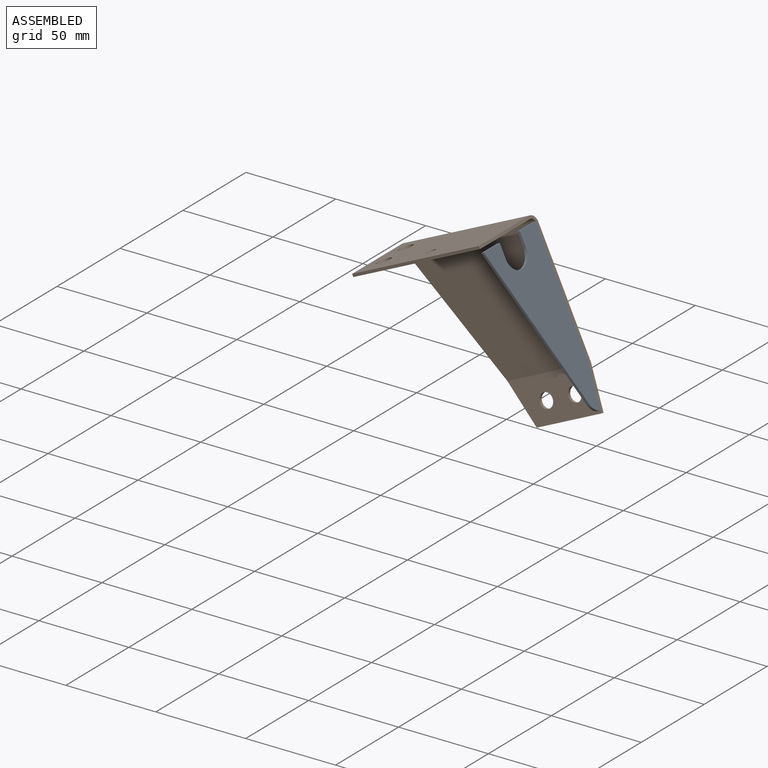
[diagram: assembled view]
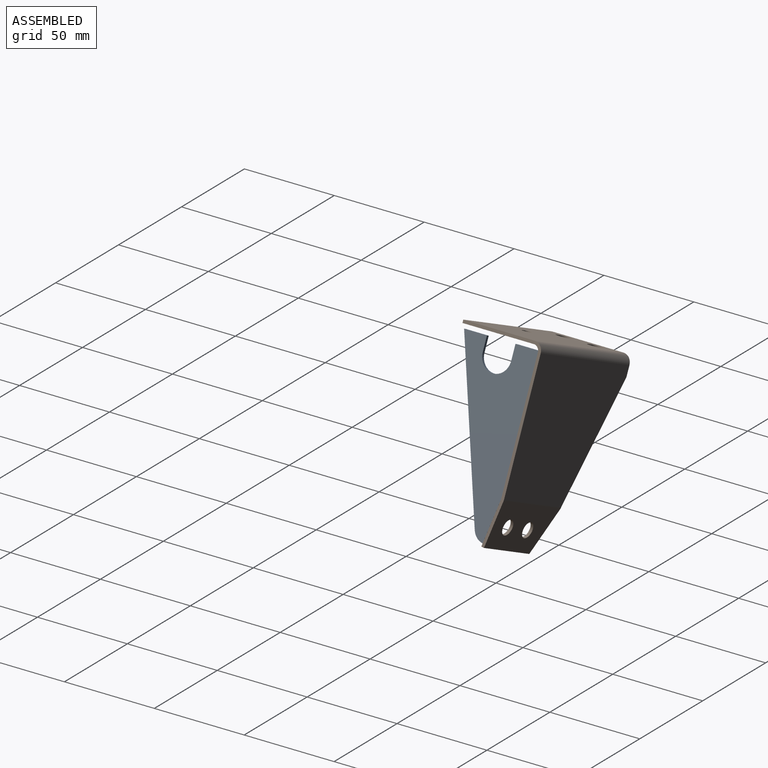
[diagram: assembled view, second angle]
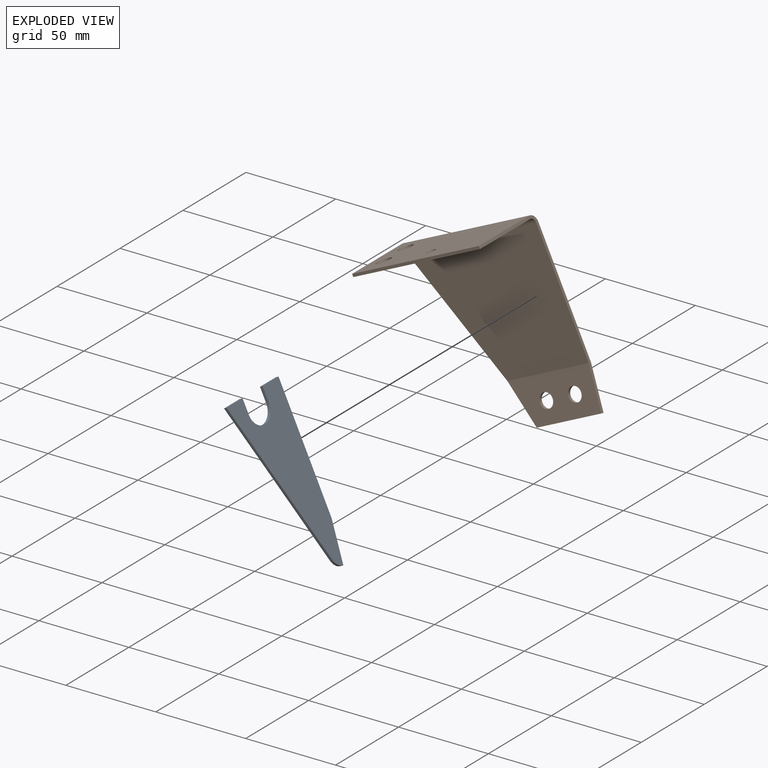
[diagram: exploded view]
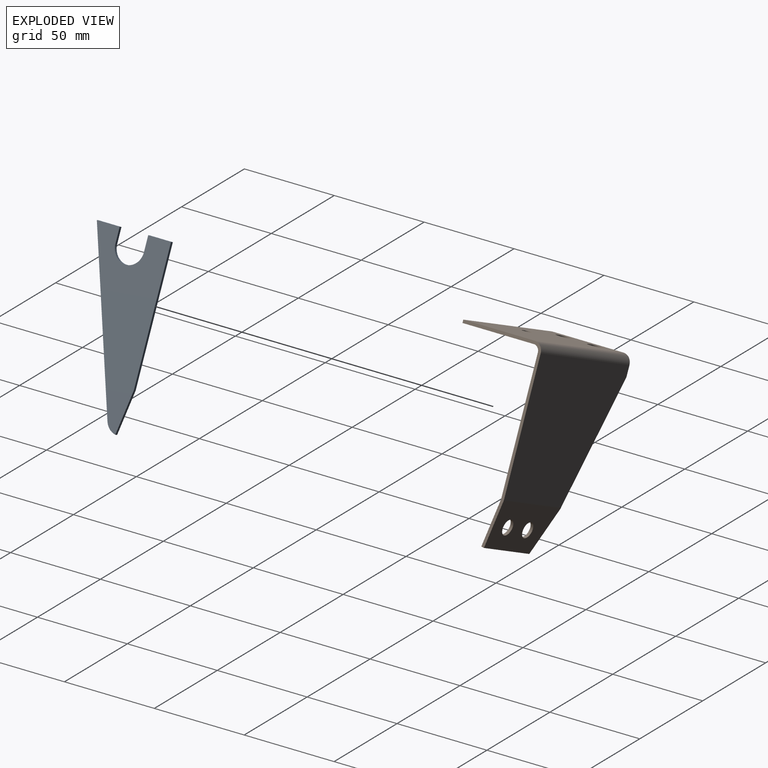
[diagram: exploded view, second angle]
ASSEMBLY  parts=2 mates=2
PART A: 11 faces, bbox 91.7x1.6x41.3 mm
  f0: plane 12.7x1.59mm, normal (-1,0,0), area 20.2mm2, adj f1,f8,f9,f10
  f1: plane 69.85x1.59mm, normal (0,0,-1), area 110.9mm2, adj f0,f2,f9,f10
  f2: plane 21.89x3.86mm, normal (0.17,0,-0.98), area 35.3mm2, adj f1,f3,f9,f10
  f3: cylinder r=7.57mm len=5.8mm, axis (0,1,0), area 12.6mm2, adj f2,f4,f9,f10
  f4: plane 86.87x31.62mm, normal (0.34,0,0.94), area 146.8mm2, adj f3,f5,f9,f10
  f5: plane 12.7x1.59mm, normal (-1,0,0), area 20.2mm2, adj f4,f6,f9,f10
  f6: plane 7.94x1.59mm, normal (0,0,-1), area 12.6mm2, adj f5,f7,f9,f10
  f7: cylinder r=7.94mm len=15.88mm, axis (0,1,0), area 39.6mm2, adj f6,f8,f9,f10
  f8: plane 7.94x1.59mm, normal (0,0,1), area 12.6mm2, adj f0,f7,f9,f10
  f9: plane 91.74x41.28mm, normal (0,-1,0), area 1983.1mm2, adj f0,f1,f2,f3,f4,f5,f6,f7
  f10: plane 91.74x41.28mm, normal (0,1,0), area 1983.1mm2, adj f0,f1,f2,f3,f4,f5,f6,f7
PART B: 28 faces, bbox 77.8x44.5x97.4 mm
  f0: plane 5.56x1.59mm, normal (-1,0,0), area 8.8mm2, adj f2,f3,f4,f13
  f1: plane 68.78x1.59mm, normal (1,0,0), area 109.2mm2, adj f3,f4,f14,f24
  f2: plane 63.22x27.66mm, normal (-0.92,0,-0.4), area 109.6mm2, adj f0,f3,f4,f25
  f3: plane 77.79x68.78mm, normal (0,1,0), area 4475.8mm2, adj f0,f1,f2,f15,f26
  f4: plane 77.79x68.78mm, normal (0,-1,0), area 4475.8mm2, adj f0,f1,f2,f16,f27
  f5: plane 39.69x1.59mm, normal (1,0,0), area 63mm2, adj f10,f11,f12,f14
  f6: plane 39.69x1.59mm, normal (-1,0,0), area 63mm2, adj f10,f11,f12,f13
  f7: cylinder r=2.46mm len=4.92mm, axis (0,0,1), area 24.5mm2, adj f11,f12
  f8: cylinder r=3.97mm len=7.94mm, axis (0,0,1), area 39.6mm2, adj f11,f12
  f9: cylinder r=3.97mm len=7.94mm, axis (0,0,1), area 39.6mm2, adj f11,f12
  f10: plane 77.79x1.59mm, normal (0,-1,0), area 123.5mm2, adj f5,f6,f11,f12
  f11: plane 77.79x39.69mm, normal (0,0,1), area 2969.3mm2, adj f5,f6,f7,f8,f9,f10,f15
  f12: plane 77.79x39.69mm, normal (0,0,-1), area 2969.3mm2, adj f5,f6,f7,f8,f9,f10,f16
  f13: plane 4.76x4.76mm, normal (-1,0,0), area 9.9mm2, adj f0,f6,f15,f16
  f14: plane 4.76x4.76mm, normal (1,0,0), area 9.9mm2, adj f1,f5,f15,f16
  f15: cylinder r=4.76mm len=77.79mm, axis (-1,0,0), area 581.9mm2, adj f3,f11,f13,f14
  f16: cylinder r=3.17mm len=77.79mm, axis (-1,0,0), area 387.9mm2, adj f4,f12,f13,f14
  f17: plane 23.32x5.63mm, normal (1,0,0), area 37.1mm2, adj f18,f22,f23,f24
  f18: plane 39.69x1.56mm, normal (0,-0.17,-0.98), area 63mm2, adj f17,f21,f22,f23
  f19: cylinder r=3.97mm len=8.09mm, axis (0,0.98,-0.17), area 39.6mm2, adj f22,f23
  f20: cylinder r=3.97mm len=8.09mm, axis (0,0.98,-0.17), area 39.6mm2, adj f22,f23
  f21: plane 23.32x10.2mm, normal (-0.92,-0.07,-0.39), area 40.5mm2, adj f18,f22,f23,f25
  f22: plane 49.89x23.04mm, normal (0,0.98,-0.17), area 948.9mm2, adj f17,f18,f19,f20,f21,f26
  f23: plane 49.89x23.04mm, normal (0,-0.98,0.17), area 948.9mm2, adj f17,f18,f19,f20,f21,f27
  f24: plane 1.64x0.83mm, normal (1,0,0), area 1.1mm2, adj f1,f17,f26,f27
  f25: bspline ~1.64x0.83mm, area 1.2mm2, adj f2,f21,f26,f27
  f26: cylinder r=4.76mm len=50.13mm, axis (1,0,0), area 41.6mm2, adj f3,f22,f24,f25
  f27: cylinder r=3.17mm len=50.13mm, axis (1,0,0), area 27.7mm2, adj f4,f23,f24,f25
PLACE A rot(axis=(0.74,0.47,-0.47),106.8deg) t=(-30.35,-20.66,13.58)mm
PLACE B rot(axis=(0,-1,0),25deg) t=(-4.15,1.57,-42.61)mm
MATE planar B.f4 <-> A.f1  axis (0,-1,0) through (-49.89,-0.02,-22.82)mm
MATE planar A.f10 <-> B.f1  axis (0.91,0,0.42) through (-17.84,-13.76,-13.23)mm
